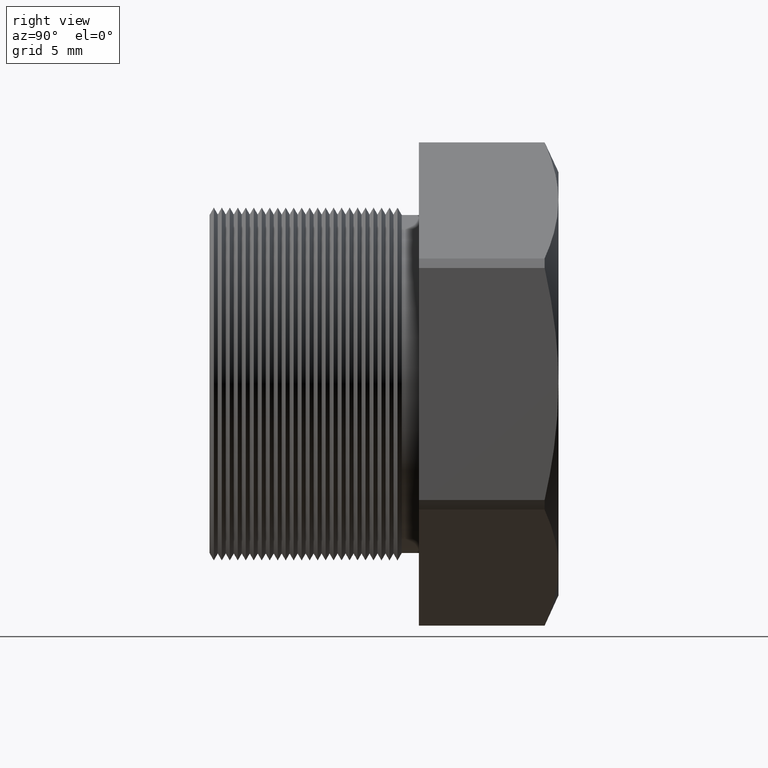
[diagram: clean part render]
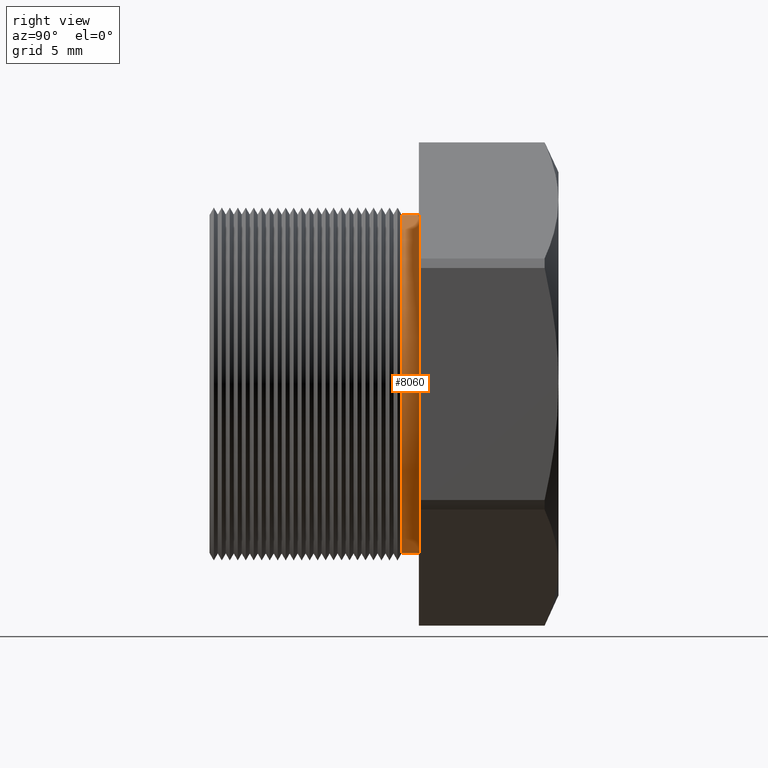
[diagram: same view with one face highlighted and labeled with its STEP entity id]
A machine part, right view. The second image highlights one B-rep face of the part: STEP entity #8060.
In plain terms, the highlighted cylindrical surface (partial cylindrical patch) has radius 8.001 mm, axis along (-0, -1, -0).
Its self-contained STEP definition (entity closure, byte-faithful):
#2757 = CARTESIAN_POINT ( 'NONE',  ( 0.0000000000000000000, 0.1155072448100089000, -0.3150000000000000000 ) ) ;
#2803 = DIRECTION ( 'NONE',  ( 0.0000000000000000000, 0.0000000000000000000, -1.000000000000000000 ) ) ;
#2804 = DIRECTION ( 'NONE',  ( 0.0000000000000000000, -1.000000000000000000, 0.0000000000000000000 ) ) ;
#2805 = CARTESIAN_POINT ( 'NONE',  ( 0.0000000000000000000, 0.1155072448100089000, 0.0000000000000000000 ) ) ;
#2806 = AXIS2_PLACEMENT_3D ( 'NONE', #2805, #2804, #2803 ) ;
#2807 = CIRCLE ( 'NONE', #2806, 0.3150000000000000000 ) ;
#2819 = CARTESIAN_POINT ( 'NONE',  ( 3.857637417314162700E-017, 0.1155072448100089000, 0.3150000000000000000 ) ) ;
#2879 = CARTESIAN_POINT ( 'NONE',  ( 0.0000000000000000000, 0.1475548905829479600, 0.0000000000000000000 ) ) ;
#2880 = AXIS2_PLACEMENT_3D ( 'NONE', #2879, #2941, #2940 ) ;
#2881 = CIRCLE ( 'NONE', #2880, 0.3150000000000000000 ) ;
#2883 = CARTESIAN_POINT ( 'NONE',  ( 0.0000000000000000000, 0.1475548905829479600, -0.3150000000000000000 ) ) ;
#2884 = CARTESIAN_POINT ( 'NONE',  ( 3.857637417314162700E-017, 0.1475548905829479600, 0.3150000000000000000 ) ) ;
#2921 = DIRECTION ( 'NONE',  ( 0.0000000000000000000, 0.0000000000000000000, -1.000000000000000000 ) ) ;
#2922 = DIRECTION ( 'NONE',  ( -0.0000000000000000000, -1.000000000000000000, -0.0000000000000000000 ) ) ;
#2923 = CARTESIAN_POINT ( 'NONE',  ( 0.0000000000000000000, 0.0000000000000000000, 0.0000000000000000000 ) ) ;
#2924 = AXIS2_PLACEMENT_3D ( 'NONE', #2923, #2922, #2921 ) ;
#2925 = CYLINDRICAL_SURFACE ( 'NONE', #2924, 0.3150000000000000000 ) ;
#2926 = FACE_OUTER_BOUND ( 'NONE', #8055, .T. ) ;
#2940 = DIRECTION ( 'NONE',  ( 0.0000000000000000000, 0.0000000000000000000, -1.000000000000000000 ) ) ;
#2941 = DIRECTION ( 'NONE',  ( -0.0000000000000000000, -1.000000000000000000, -0.0000000000000000000 ) ) ;
#2944 = DIRECTION ( 'NONE',  ( -0.0000000000000000000, -1.000000000000000000, -0.0000000000000000000 ) ) ;
#2945 = VECTOR ( 'NONE', #2944, 39.37007874015748100 ) ;
#2946 = CARTESIAN_POINT ( 'NONE',  ( 3.857637417314162700E-017, 0.0000000000000000000, 0.3150000000000000000 ) ) ;
#2947 = LINE ( 'NONE', #2946, #2945 ) ;
#2960 = DIRECTION ( 'NONE',  ( -0.0000000000000000000, -1.000000000000000000, -0.0000000000000000000 ) ) ;
#2961 = VECTOR ( 'NONE', #2960, 39.37007874015748100 ) ;
#2962 = CARTESIAN_POINT ( 'NONE',  ( 0.0000000000000000000, 0.0000000000000000000, -0.3150000000000000000 ) ) ;
#2963 = LINE ( 'NONE', #2962, #2961 ) ;
#7971 = VERTEX_POINT ( 'NONE', #2757 ) ;
#7979 = EDGE_CURVE ( 'NONE', #7971, #8011, #2807, .T. ) ;
#8011 = VERTEX_POINT ( 'NONE', #2819 ) ;
#8048 = VERTEX_POINT ( 'NONE', #2884 ) ;
#8049 = VERTEX_POINT ( 'NONE', #2883 ) ;
#8050 = EDGE_CURVE ( 'NONE', #8049, #8048, #2881, .T. ) ;
#8051 = ORIENTED_EDGE ( 'NONE', *, *, #8050, .T. ) ;
#8055 = EDGE_LOOP ( 'NONE', ( #8051, #8080, #8076, #8070 ) ) ;
#8060 = ADVANCED_FACE ( 'NONE', ( #2926 ), #2925, .T. ) ;
#8070 = ORIENTED_EDGE ( 'NONE', *, *, #8073, .F. ) ;
#8073 = EDGE_CURVE ( 'NONE', #8049, #7971, #2963, .T. ) ;
#8076 = ORIENTED_EDGE ( 'NONE', *, *, #7979, .F. ) ;
#8080 = ORIENTED_EDGE ( 'NONE', *, *, #8083, .T. ) ;
#8083 = EDGE_CURVE ( 'NONE', #8048, #8011, #2947, .T. ) ;